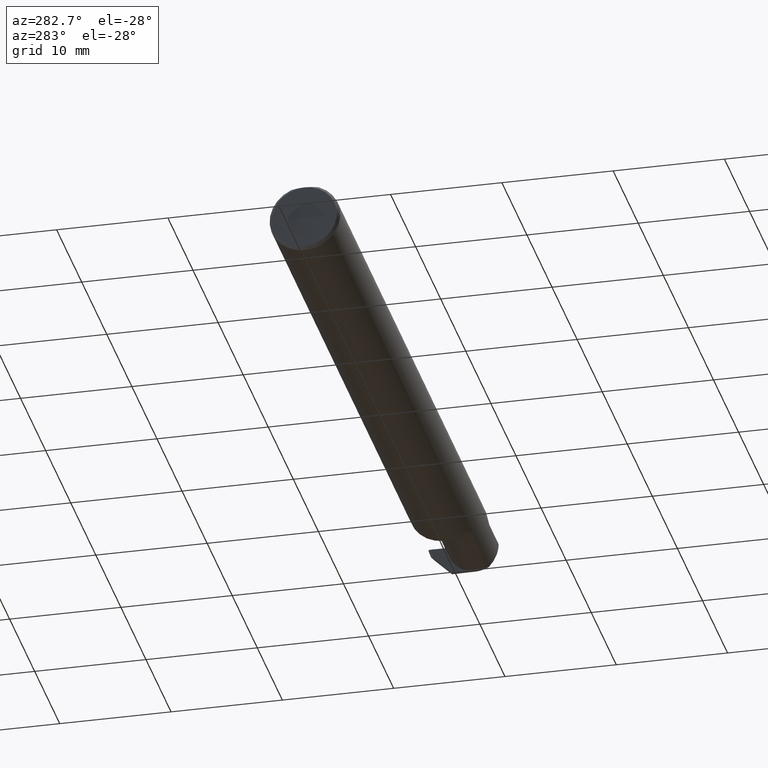
[diagram: clean part render]
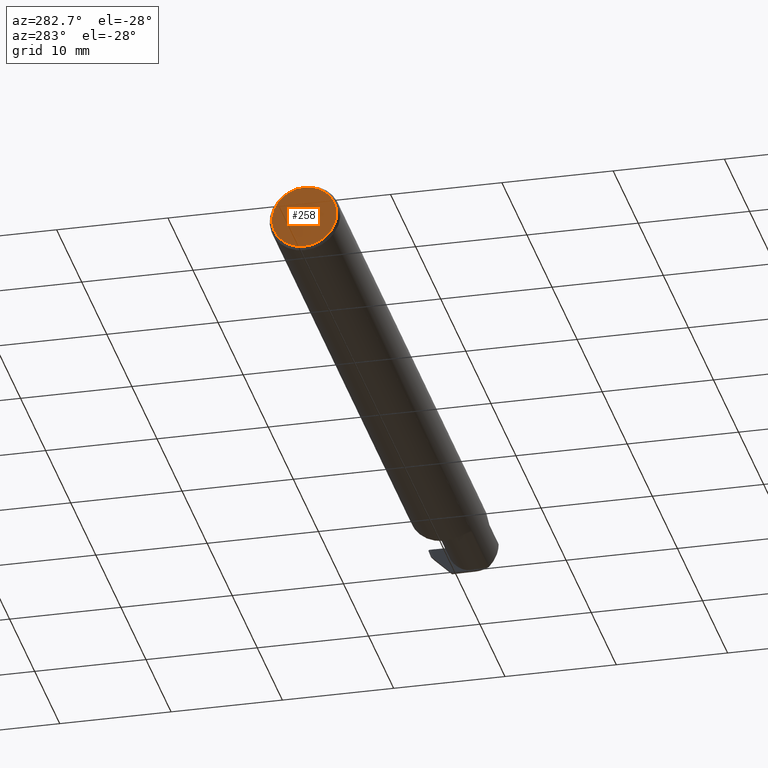
[diagram: same view with one face highlighted and labeled with its STEP entity id]
A machine part, auxiliary view. The second image highlights one B-rep face of the part: STEP entity #258.
In plain terms, the highlighted planar face has unit normal (1, 0, 0).
Its self-contained STEP definition (entity closure, byte-faithful):
#34 = AXIS2_PLACEMENT_3D ( 'NONE', #267, #533, #649 ) ;
#107 = FACE_OUTER_BOUND ( 'NONE', #187, .T. ) ;
#145 = DIRECTION ( 'NONE',  ( 0.000000000000000000, 0.000000000000000000, -1.000000000000000000 ) ) ;
#183 = CARTESIAN_POINT ( 'NONE',  ( 0.000000000000000000, 0.000000000000000000, -0.1149999999999997274 ) ) ;
#187 = EDGE_LOOP ( 'NONE', ( #602, #500 ) ) ;
#220 = PLANE ( 'NONE',  #34 ) ;
#221 = AXIS2_PLACEMENT_3D ( 'NONE', #303, #682, #145 ) ;
#251 = CIRCLE ( 'NONE', #644, 0.1149999999999997274 ) ;
#258 = ADVANCED_FACE ( 'NONE', ( #107 ), #220, .F. ) ;
#267 = CARTESIAN_POINT ( 'NONE',  ( 0.000000000000000000, 0.000000000000000000, 0.000000000000000000 ) ) ;
#303 = CARTESIAN_POINT ( 'NONE',  ( 0.000000000000000000, 0.000000000000000000, 0.000000000000000000 ) ) ;
#304 = EDGE_CURVE ( 'NONE', #611, #555, #527, .T. ) ;
#306 = DIRECTION ( 'NONE',  ( -1.000000000000000000, -0.000000000000000000, -0.000000000000000000 ) ) ;
#364 = CARTESIAN_POINT ( 'NONE',  ( 0.000000000000000000, 0.000000000000000000, 0.000000000000000000 ) ) ;
#399 = EDGE_CURVE ( 'NONE', #555, #611, #251, .T. ) ;
#420 = CARTESIAN_POINT ( 'NONE',  ( 0.000000000000000000, 3.414809992080329023E-17, 0.1149999999999999217 ) ) ;
#500 = ORIENTED_EDGE ( 'NONE', *, *, #304, .T. ) ;
#527 = CIRCLE ( 'NONE', #221, 0.1149999999999997274 ) ;
#533 = DIRECTION ( 'NONE',  ( 1.000000000000000000, 0.000000000000000000, 0.000000000000000000 ) ) ;
#555 = VERTEX_POINT ( 'NONE', #420 ) ;
#602 = ORIENTED_EDGE ( 'NONE', *, *, #399, .T. ) ;
#611 = VERTEX_POINT ( 'NONE', #183 ) ;
#628 = DIRECTION ( 'NONE',  ( 0.000000000000000000, 0.000000000000000000, -1.000000000000000000 ) ) ;
#644 = AXIS2_PLACEMENT_3D ( 'NONE', #364, #306, #628 ) ;
#649 = DIRECTION ( 'NONE',  ( 0.000000000000000000, 0.000000000000000000, -1.000000000000000000 ) ) ;
#682 = DIRECTION ( 'NONE',  ( -1.000000000000000000, -0.000000000000000000, -0.000000000000000000 ) ) ;